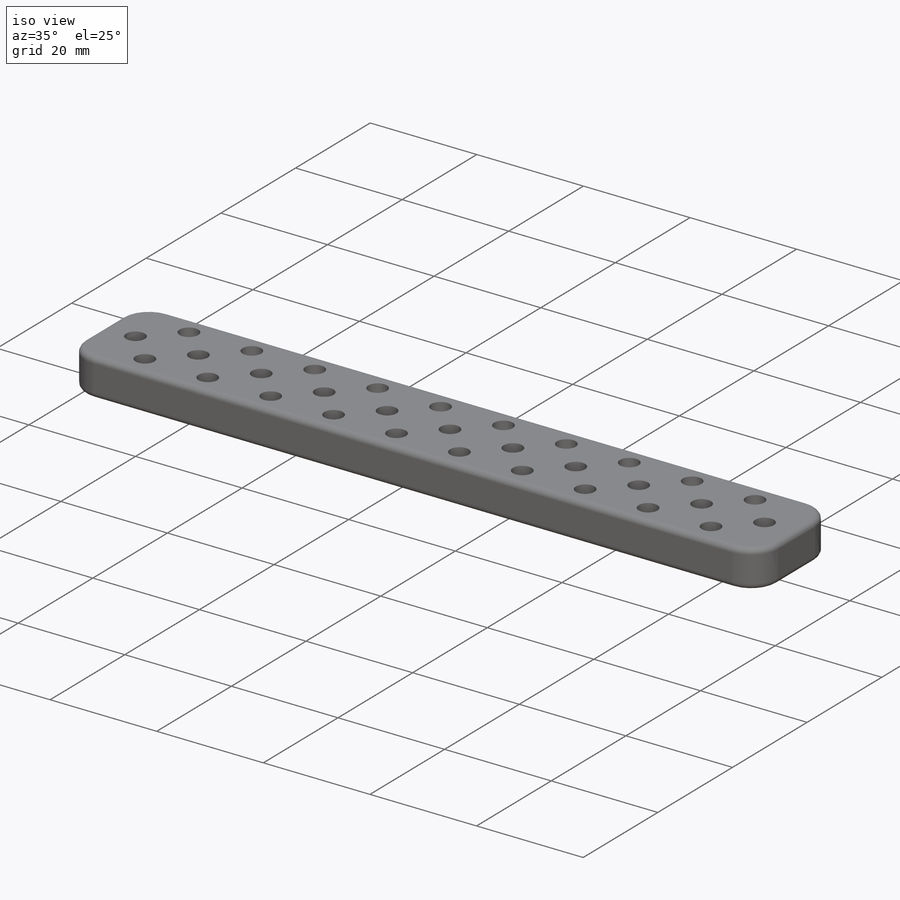
[diagram: iso view]
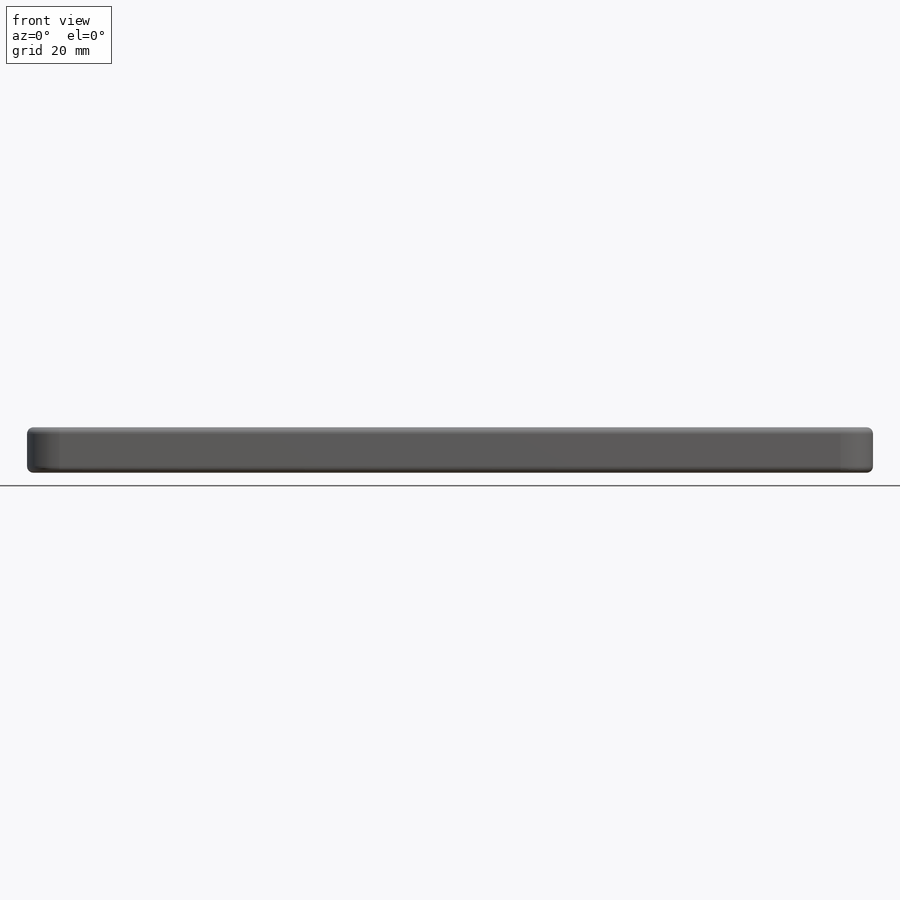
[diagram: front view]
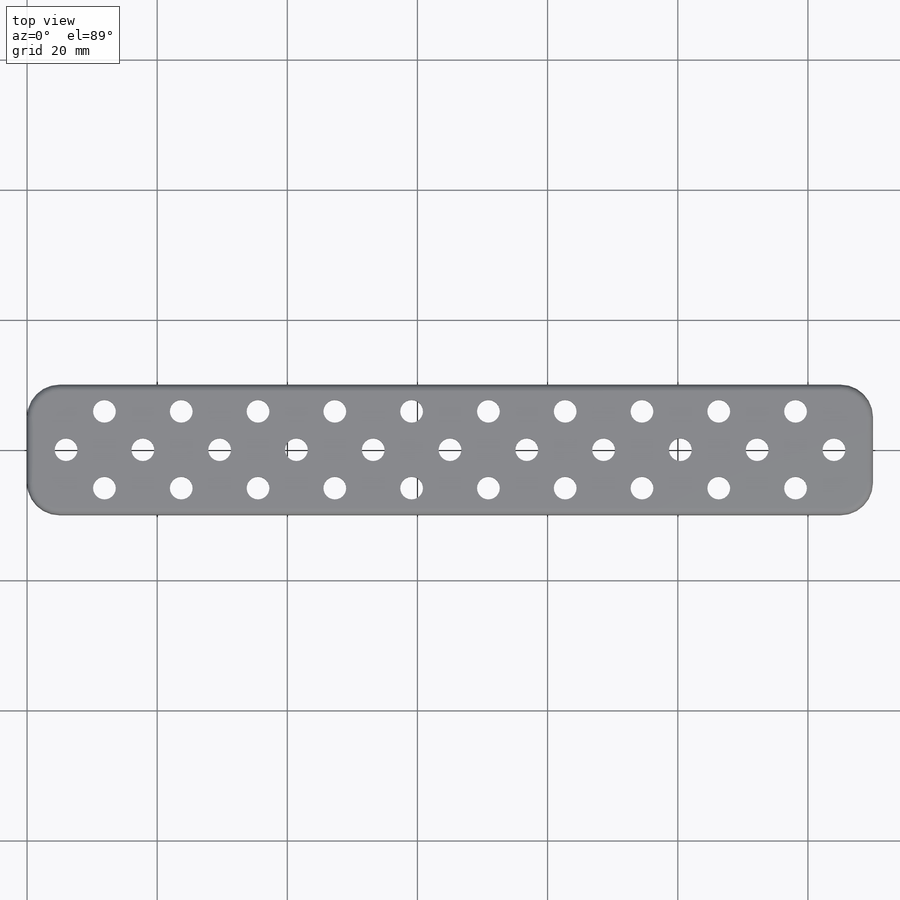
[diagram: top view]
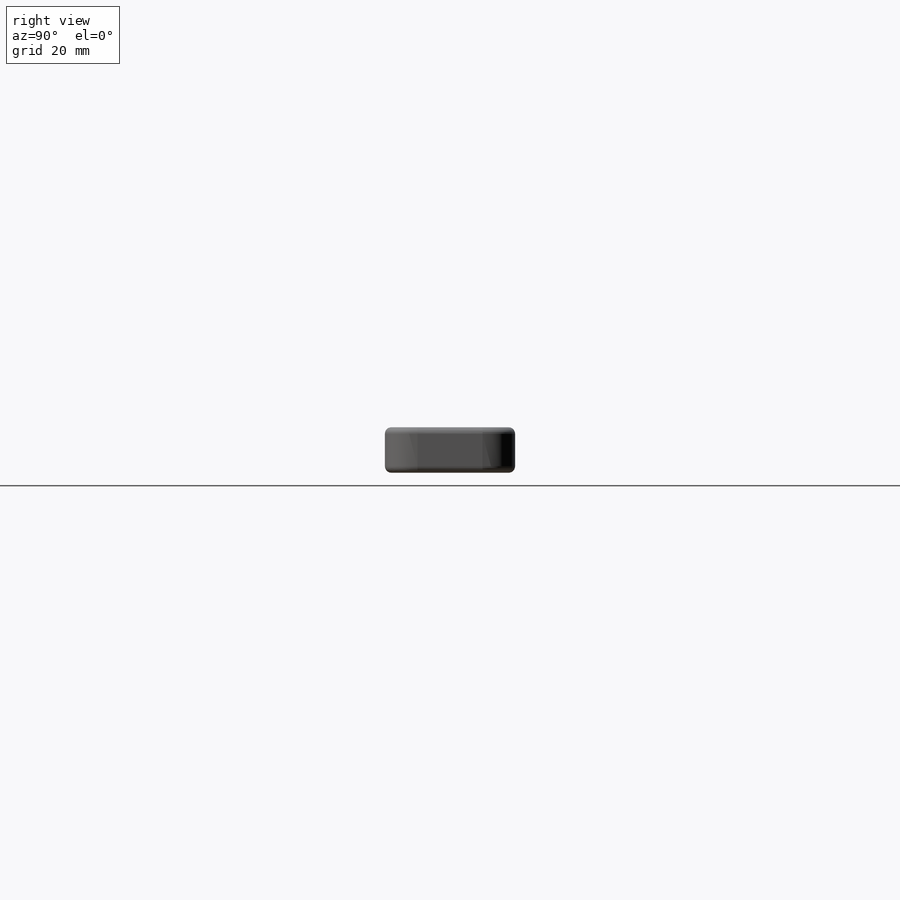
[diagram: right view]
SOLIDWORKS PART (.sldprt)
format: sldprt  version: not decoded by parser v0  size: 630,272 bytes
history: native  units: mm
features: sketch x14, cut_extrude x12, plane x5, fillet x3, material x1, extrude x1, pattern_linear x1 (+10 scaffold rows collapsed)
feature tree (47):
  scaffold x10  (default folders/planes/origin — collapsed)
  material  "Материал <не указан>"
  plane  "Спереди"
  plane  "Сверху"
  plane  "Справа"
  sketch  "Эскиз1"  dims[c1.D3=3.5mm c1.D4=6.0mm c1.D1=20.0mm c1.D2=130.0mm c1.D5=5.9mm c1.D7=3.0mm c2.D2=124.0mm c2.D6=4.0]
  extrude  "Бобышка-Вытянуть2"  Depth=7mm
  cut_extrude  "Вырез-Вытянуть1"  [1 undecoded]
  sketch  "Эскиз1<3>"
  cut_extrude  "Вырез-Вытянуть2"  [1 undecoded]
  sketch  "Эскиз1<4>"  dims[D1=4.0mm]
  cut_extrude  "Вырез-Вытянуть3"  [1 undecoded]
  sketch  "Эскиз1<5>"  dims[D1=3.0mm]
  pattern_linear  "Линейный массив1"  Count1=10 Count2=1 Spacing1=11.8mm Spacing2=50mm
  cut_extrude  "Вырез-Вытянуть4"  [1 undecoded]
  sketch  "Эскиз1<6>"
  cut_extrude  "Вырез-Вытянуть5"  [1 undecoded]
  sketch  "Эскиз1<7>"  dims[D1=4.0mm]
  cut_extrude  "Вырез-Вытянуть6"  [1 undecoded]
  sketch  "Эскиз1<8>"  dims[D1=3.0mm]
  sketch  "Эскиз2"  dims[D1=3.0mm]
  cut_extrude  "Вырез-Вытянуть7"  [1 undecoded]
  sketch  "Эскиз3"  dims[D1=3.3mm D2=5.5mm]
  plane  "Плоскость1"
  plane  "Плоскость2"  Offset=1mm
  cut_extrude  "Вырез-Вытянуть9"  Depth=2.5mm
  cut_extrude  "Вырез-Вытянуть11"  [1 undecoded]
  sketch  "Эскиз3<4>"  dims[D1=9.0mm]
  sketch  "Эскиз4"
  cut_extrude  "Вырез-Вытянуть12"  [1 undecoded]
  cut_extrude  "Вырез-Вытянуть13"  [1 undecoded]
  sketch  "Эскиз4<3>"
  sketch  "Эскиз5"
  fillet  "Скругление3"  Radius=5mm
  sketch  "Эскиз6"  dims[D1=3.0mm D2=3.0mm]
  cut_extrude  "Вырез-Вытянуть14"  [1 undecoded]
  fillet  "Скругление6"  Radius=5mm
  fillet  "Скругление5"  Radius=1mm
decode coverage: 15 of 31 modeling features carry decoded parameters
note: 11 parameter values undecoded
summary: no parameter record found for 11 features
note: suppression state not decoded; provenance and decode notes live in map.json
